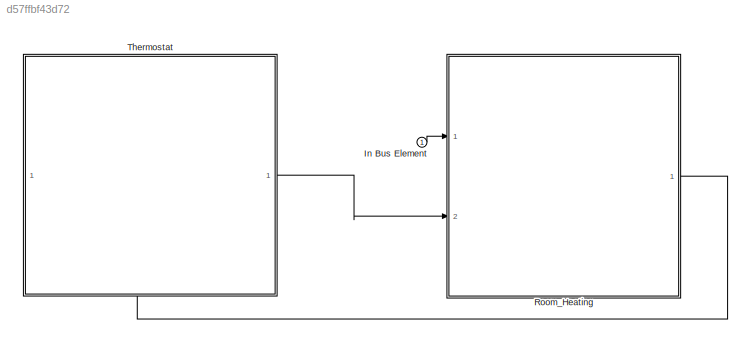
MODEL slx_d57ffbf43d72
KIND model
CONFIG AbsTol = auto
CONFIG EnableMultiTasking = off
CONFIG FixedStep = auto
CONFIG MaxStep = auto
CONFIG MinStep = auto
CONFIG RelTol = 1e-3
CONFIG SampleTimeConstraint = Unconstrained
CONFIG SolverName = VariableStepAuto
CONFIG StartTime = 0.0
CONFIG StopTime = inf
BLOCK [Inport] In Bus Element
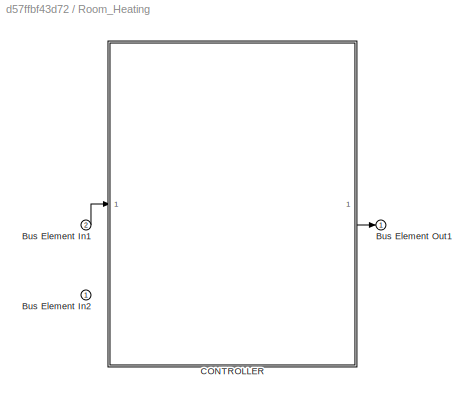
BLOCK [SubSystem] Room_Heating
  PortSchema = {"entries":[{"content":{"headerSize":26,"margin":15,"minimumSpacing":25,"sides":[{"content":{"connectorIds":["In1","In2"]},"type":"ConnectorPlacement.EquallySpacedRectSide","uuid":"3399fd0f-e173-41a6-b187-8436c8bfa551"},{"content":{"connectorIds":["Out1"],"side":"RIGHT"},"type":"ConnectorPlacement.EquallySpacedRectSide","uuid":"ade3010a-e700-4d19-9692-9b4fbd9f77bd"},{"content":{"connectorIds":[],"...<+294ch>
  Ports = [2, 1]
  RequestExecContextInheritance = off
BLOCK [Inport] Room_Heating/Bus Element In1
  Port = 2
BLOCK [Inport] Room_Heating/Bus Element In2
BLOCK [Outport] Room_Heating/Bus Element Out1
BLOCK [ModelReference] Room_Heating/CONTROLLER
  ModelNameDialog = CONTROLLER_2
  ModelReferenceVersion = 1.9
  PortSchema = {"entries":[{"content":{"headerSize":38,"margin":15,"minimumSpacing":25,"sides":[{"content":{"connectorIds":["In1"]},"type":"ConnectorPlacement.EquallySpacedRectSide","uuid":"3b44bb81-377b-4962-9dcc-156f7f1f6855"},{"content":{"connectorIds":["Out1"],"side":"RIGHT"},"type":"ConnectorPlacement.EquallySpacedRectSide","uuid":"4cba6eea-a5d9-4e03-afc9-ce5179a534ee"},{"content":{"connectorIds":[],"side":...<+288ch>
  Ports = [1, 1]
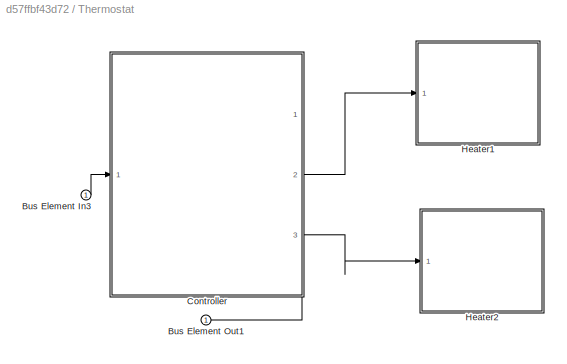
BLOCK [SubSystem] Thermostat
  PortSchema = {"entries":[{"content":{"headerSize":26,"margin":15,"minimumSpacing":25,"sides":[{"content":{"connectorIds":[]},"type":"ConnectorPlacement.EquallySpacedRectSide","uuid":"3399fd0f-e173-41a6-b187-8436c8bfa551"},{"content":{"connectorIds":["Out1"],"side":"RIGHT"},"type":"ConnectorPlacement.EquallySpacedRectSide","uuid":"ade3010a-e700-4d19-9692-9b4fbd9f77bd"},{"content":{"connectorIds":[],"side":"TOP"...<+432ch>
  Ports = [1, 1]
  RequestExecContextInheritance = off
BLOCK [Inport] Thermostat/Bus Element In3
BLOCK [Outport] Thermostat/Bus Element Out1
BLOCK [ModelReference] Thermostat/Controller
  ModelNameDialog = Controller_1
  ModelReferenceVersion = 1.16
  PortSchema = {"entries":[{"content":{"headerSize":38,"margin":15,"minimumSpacing":25,"sides":[{"content":{"connectorIds":["In1"]},"type":"ConnectorPlacement.EquallySpacedRectSide","uuid":"3b44bb81-377b-4962-9dcc-156f7f1f6855"},{"content":{"connectorIds":["Out2","Out3"],"side":"RIGHT"},"type":"ConnectorPlacement.EquallySpacedRectSide","uuid":"4cba6eea-a5d9-4e03-afc9-ce5179a534ee"},{"content":{"connectorIds":[],...<+445ch>
  Ports = [1, 3]
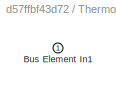
BLOCK [SubSystem] Thermostat/Heater1
  PortSchema = {"entries":[{"content":{"headerSize":26,"margin":15,"minimumSpacing":25,"sides":[{"content":{"connectorIds":["In1"]},"type":"ConnectorPlacement.EquallySpacedRectSide","uuid":"3b44bb81-377b-4962-9dcc-156f7f1f6855"},{"content":{"connectorIds":[],"side":"RIGHT"},"type":"ConnectorPlacement.EquallySpacedRectSide","uuid":"4cba6eea-a5d9-4e03-afc9-ce5179a534ee"},{"content":{"connectorIds":[],"side":"TOP"}...<+282ch>
  Ports = [1]
  RequestExecContextInheritance = off
BLOCK [Inport] Thermostat/Heater1/Bus Element In1
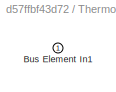
BLOCK [SubSystem] Thermostat/Heater2
  PortSchema = {"entries":[{"content":{"headerSize":26,"margin":15,"minimumSpacing":25,"sides":[{"content":{"connectorIds":["In1"]},"type":"ConnectorPlacement.EquallySpacedRectSide","uuid":"3b44bb81-377b-4962-9dcc-156f7f1f6855"},{"content":{"connectorIds":[],"side":"RIGHT"},"type":"ConnectorPlacement.EquallySpacedRectSide","uuid":"4cba6eea-a5d9-4e03-afc9-ce5179a534ee"},{"content":{"connectorIds":[],"side":"TOP"}...<+282ch>
  Ports = [1]
  RequestExecContextInheritance = off
BLOCK [Inport] Thermostat/Heater2/Bus Element In1
LINE In Bus Element:1 -> Room_Heating:1
LINE Room_Heating/Bus Element In1:1 -> Room_Heating/CONTROLLER:1
LINE Room_Heating/CONTROLLER:1 -> Room_Heating/Bus Element Out1:1
LINE Room_Heating:1 -> Thermostat:1
LINE Thermostat/Bus Element In3:1 -> Thermostat/Controller:1
LINE Thermostat/Controller:1 -> Thermostat/Bus Element Out1:1
LINE Thermostat/Controller:2 -> Thermostat/Heater1:1
LINE Thermostat/Controller:3 -> Thermostat/Heater2:1
LINE Thermostat:1 -> Room_Heating:2
